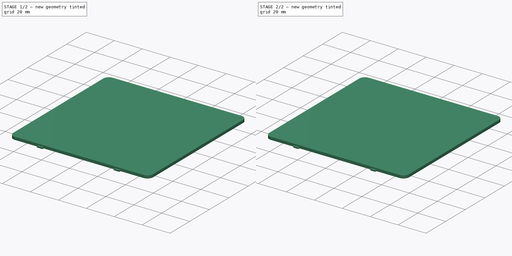
[diagram: build sequence overview — one tinted view per stage of 2, left to right]
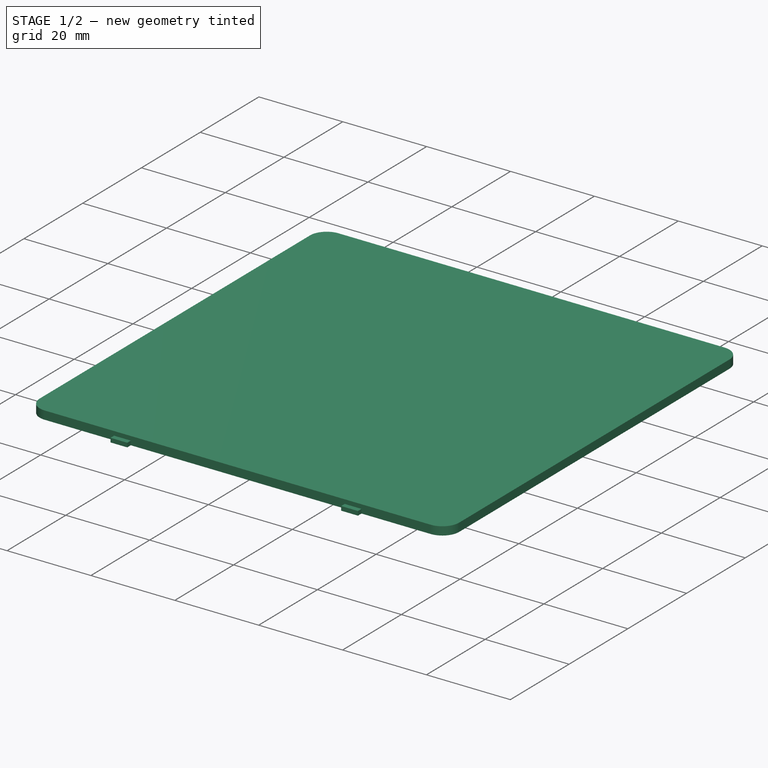
[diagram: stage 1 of 2 — iso view after this stage's code; geometry added in this stage tinted green]
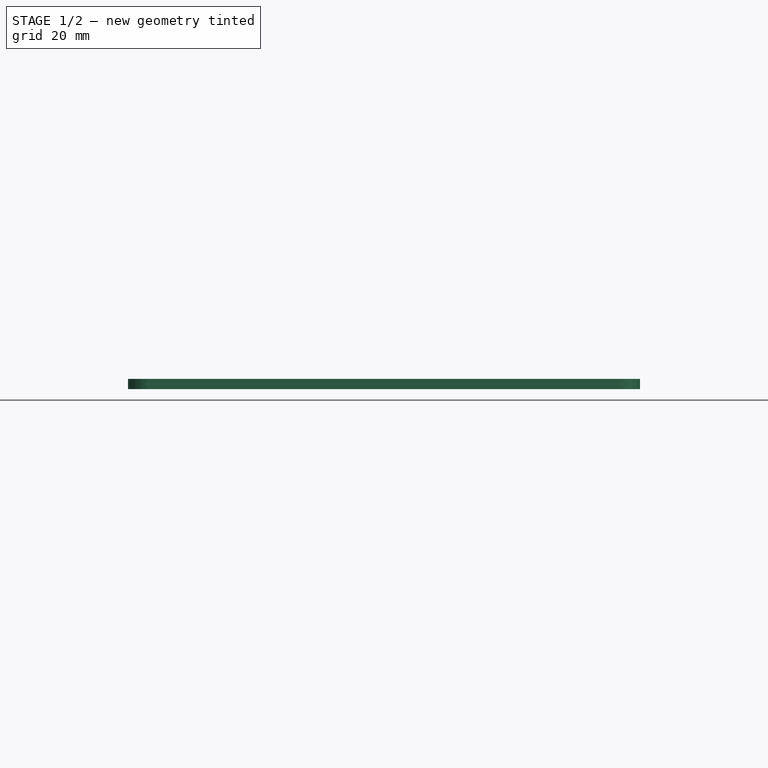
[diagram: stage 1 of 2 — front view after this stage's code; geometry added in this stage tinted green]
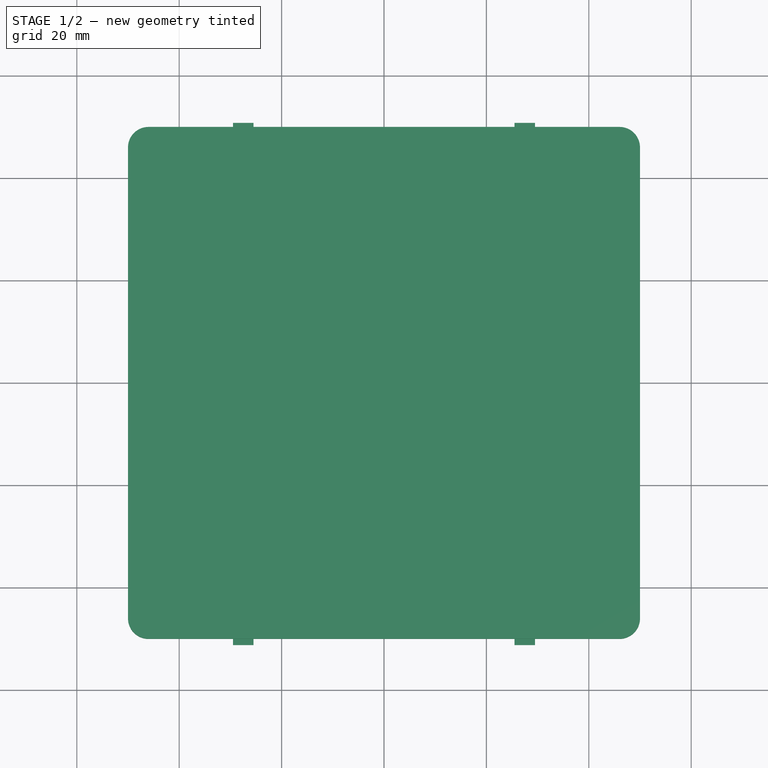
[diagram: stage 1 of 2 — top view after this stage's code; geometry added in this stage tinted green]
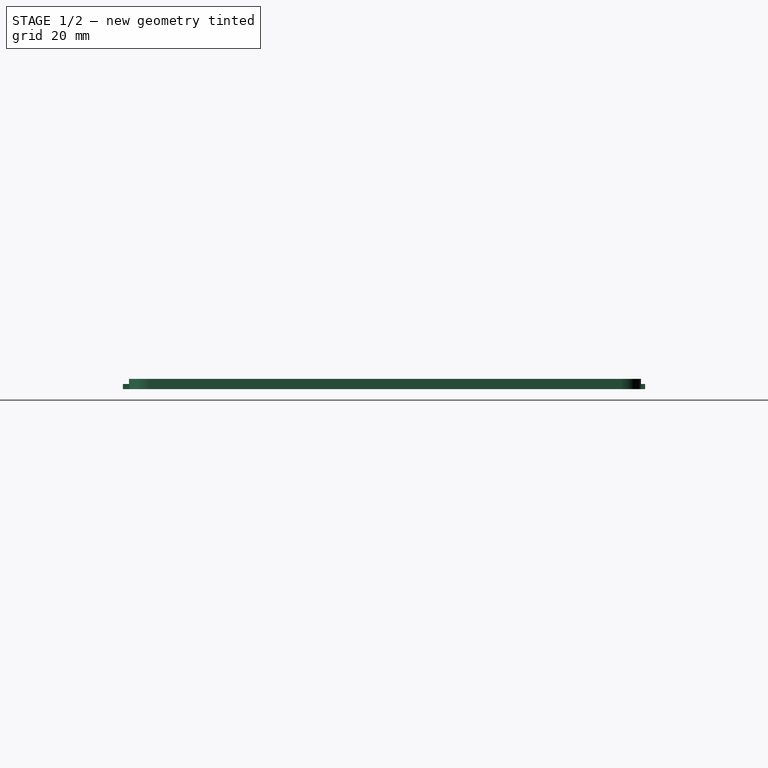
[diagram: stage 1 of 2 — right view after this stage's code; geometry added in this stage tinted green]
FCSTD DOCUMENT  (FreeCAD 0.20R29603 (Git))
Label: BackPocketCover
License: All rights reserved
LicenseURL: http://en.wikipedia.org/wiki/All_rights_reserved
objects: Sketcher::SketchObject×2, PartDesign::Pad×2, PartDesign::Chamfer×1, PartDesign::Body×1
note: 9 computed .brp shape members not serialized (recipe doc carries the construction recipe); baked Part::Feature solids carry a one-line shape summary decoded from their .brp

FEATURE [Sketcher::SketchObject] Sketch
  FullyConstrained = true
  MapMode = 5
  Support = -> [XY_Plane]
  sketch-geometry (24):
    g0: LineSegment StartX=-46 StartY=50 StartZ=0 EndX=-29.5 EndY=50 EndZ=0
    g1: LineSegment StartX=50 StartY=46 StartZ=0 EndX=50 EndY=-46 EndZ=0
    g2: LineSegment StartX=46 StartY=-50 StartZ=0 EndX=29.5 EndY=-50 EndZ=0
    g3: LineSegment StartX=-50 StartY=-46 StartZ=0 EndX=-50 EndY=46 EndZ=0
    g4: LineSegment StartX=29.5 StartY=50 StartZ=0 EndX=29.5 EndY=50.8 EndZ=0
    g5: LineSegment StartX=29.5 StartY=50.8 StartZ=0 EndX=25.5 EndY=50.8 EndZ=0
    g6: LineSegment StartX=25.5 StartY=50.8 StartZ=0 EndX=25.5 EndY=50 EndZ=0
    g7: LineSegment StartX=-25.5 StartY=50 StartZ=0 EndX=-25.5 EndY=50.8 EndZ=0
    g8: LineSegment StartX=-25.5 StartY=50.8 StartZ=0 EndX=-29.5 EndY=50.8 EndZ=0
    g9: LineSegment StartX=-29.5 StartY=50.8 StartZ=0 EndX=-29.5 EndY=50 EndZ=0
    g10: LineSegment StartX=29.5 StartY=-50 StartZ=0 EndX=29.5 EndY=-51.2 EndZ=0
    g11: LineSegment StartX=29.5 StartY=-51.2 StartZ=0 EndX=25.5 EndY=-51.2 EndZ=0
    g12: LineSegment StartX=25.5 StartY=-51.2 StartZ=0 EndX=25.5 EndY=-50 EndZ=0
    g13: LineSegment StartX=-25.5 StartY=-50 StartZ=0 EndX=-25.5 EndY=-51.2 EndZ=0
    g14: LineSegment StartX=-25.5 StartY=-51.2 StartZ=0 EndX=-29.5 EndY=-51.2 EndZ=0
    g15: LineSegment StartX=-29.5 StartY=-51.2 StartZ=0 EndX=-29.5 EndY=-50 EndZ=0
    g16: LineSegment StartX=29.5 StartY=50 StartZ=0 EndX=46 EndY=50 EndZ=0
    g17: LineSegment StartX=-25.5 StartY=50 StartZ=0 EndX=25.5 EndY=50 EndZ=0
    g18: LineSegment StartX=25.5 StartY=-50 StartZ=0 EndX=-25.5 EndY=-50 EndZ=0
    g19: LineSegment StartX=-29.5 StartY=-50 StartZ=0 EndX=-46 EndY=-50 EndZ=0
    g20: ArcOfCircle CenterX=-46 CenterY=-46 CenterZ=0 NormalX=0 NormalY=0 NormalZ=1 AngleXU=0 Radius=4 StartAngle=3.14159 EndAngle=4.71239
    g21: ArcOfCircle CenterX=-46 CenterY=46 CenterZ=0 NormalX=0 NormalY=0 NormalZ=1 AngleXU=0 Radius=4 StartAngle=1.5708 EndAngle=3.14159
    g22: ArcOfCircle CenterX=46 CenterY=46 CenterZ=0 NormalX=0 NormalY=0 NormalZ=1 AngleXU=0 Radius=4 StartAngle=0 EndAngle=1.5708
    g23: ArcOfCircle CenterX=46 CenterY=-46 CenterZ=0 NormalX=0 NormalY=0 NormalZ=1 AngleXU=0 Radius=4 StartAngle=4.71239 EndAngle=6.28319
  constraints (66):
    c: Horizontal(g2)
    c: Vertical(g1)
    c: Coincident(g4,g5)
    c: Coincident(g5,g6)
    c: Horizontal(g5)
    c: Vertical(g4)
    c: Vertical(g6)
    c: Coincident(g7,g8)
    c: Coincident(g8,g9)
    c: Horizontal(g8)
    c: Vertical(g7)
    c: Vertical(g9)
    c: Coincident(g10,g11)
    c: Coincident(g11,g12)
    c: Horizontal(g11)
    c: Vertical(g10)
    c: Vertical(g12)
    c: Coincident(g13,g14)
    c: Coincident(g14,g15)
    c: Horizontal(g14)
    c: Vertical(g13)
    c: Vertical(g15)
    c: DistanceY(g6,g5) = 0.8
    c: DistanceX(g5,g4) = 4
    c: DistanceX(g8,g7) = 4
    c: DistanceY(g9,g8) = 0.8
    c: Symmetric(g7,g6,g-2)
    c: DistanceX(g7,g6) = 51
    c: DistanceX(g11,g10) = 4
    c: DistanceX(g14,g13) = 4
    c: DistanceY(g11,g12) = 1.2
    c: DistanceY(g14,g15) = 1.2
    c: Symmetric(g13,g12,g-2)
    c: DistanceX(g13,g12) = 51
    c: Horizontal(g16)
    c: Horizontal(g0)
    c: Coincident(g7,g17)
    c: Coincident(g17,g6)
    c: Coincident(g0,g9)
    c: Coincident(g16,g4)
    c: PointOnObject(g18,g13)
    c: PointOnObject(g19,g15)
    c: Equal(g15,g13)
    c: Equal(g10,g12)
    c: Horizontal(g19,g18)
    c: Horizontal(g19)
    c: Horizontal(g18)
    c: Coincident(g10,g2)
    c: Coincident(g18,g12)
    c: Tangent(g3,g20) = 1.5708
    c: Tangent(g19,g20) = 1.5708
    c: Diameter(g20) = 8
    c: Tangent(g0,g21) = 1.5708
    c: Tangent(g3,g21) = 1.5708
    c: Tangent(g16,g22) = 1.5708
    c: Tangent(g1,g22) = 1.5708
    c: Tangent(g1,g23) = 1.5708
    c: Tangent(g2,g23) = 1.5708
    c: Equal(g20,g23)
    c: Equal(g23,g22)
    c: Equal(g22,g21)
    c: DistanceY(g19,g0) = 100
    c: Symmetric(g3,g3,g-1)
    c: DistanceX(g3,g1) = 100
    c: Symmetric(g3,g1,g-2)
    c: Horizontal(g0,g7)
FEATURE [PartDesign::Pad] Pad
  Direction = (0,0,1)
  Length = 1
  Length2 = 10
  Profile = -> Sketch
  ReferenceAxis = -> Sketch [N_Axis]
  Type = 0
FEATURE [Sketcher::SketchObject] Sketch001
  FullyConstrained = true
  MapMode = 5
  Placement = pos=(0,0,1) rot=(0,0,1;0rad)
  Support = -> [Pad]
  sketch-geometry (8):
    g0: LineSegment StartX=-46 StartY=50 StartZ=0 EndX=46 EndY=50 EndZ=0
    g1: LineSegment StartX=50 StartY=46 StartZ=0 EndX=50 EndY=-46 EndZ=0
    g2: LineSegment StartX=46 StartY=-50 StartZ=0 EndX=-46 EndY=-50 EndZ=0
    g3: LineSegment StartX=-50 StartY=-46 StartZ=0 EndX=-50 EndY=46 EndZ=0
    g4: ArcOfCircle CenterX=-46 CenterY=46 CenterZ=0 NormalX=0 NormalY=0 NormalZ=1 AngleXU=0 Radius=4 StartAngle=1.5708 EndAngle=3.14159
    g5: ArcOfCircle CenterX=46 CenterY=46 CenterZ=0 NormalX=0 NormalY=0 NormalZ=1 AngleXU=0 Radius=4 StartAngle=6e-16 EndAngle=1.5708
    g6: ArcOfCircle CenterX=46 CenterY=-46 CenterZ=0 NormalX=0 NormalY=0 NormalZ=1 AngleXU=0 Radius=4 StartAngle=4.71239 EndAngle=6.28319
    g7: ArcOfCircle CenterX=-46 CenterY=-46 CenterZ=0 NormalX=0 NormalY=0 NormalZ=1 AngleXU=0 Radius=4 StartAngle=3.14159 EndAngle=4.71239
  constraints (18):
    c: Horizontal(g2)
    c: Vertical(g1)
    c: Tangent(g3,g4) = 1.5708
    c: Tangent(g0,g4) = 1.5708
    c: Tangent(g0,g5) = 1.5708
    c: Tangent(g1,g5) = 1.5708
    c: Tangent(g1,g6) = 1.5708
    c: Tangent(g2,g6) = 1.5708
    c: Tangent(g2,g7) = 1.5708
    c: Tangent(g3,g7) = 1.5708
    c: Equal(g4,g5)
    c: Equal(g5,g6)
    c: Equal(g6,g7)
    c: Diameter(g4) = 8
    c: Symmetric(g3,g3,g-1)
    c: Symmetric(g0,g0,g-2)
    c: DistanceY(g2,g0) = 100
    c: DistanceX(g3,g1) = 100
FEATURE [PartDesign::Pad] Pad001
  BaseFeature = -> Pad
  Direction = (0,0,1)
  Length = 1
  Length2 = 10
  Profile = -> Sketch001
  ReferenceAxis = -> Sketch001 [N_Axis]
  Type = 0
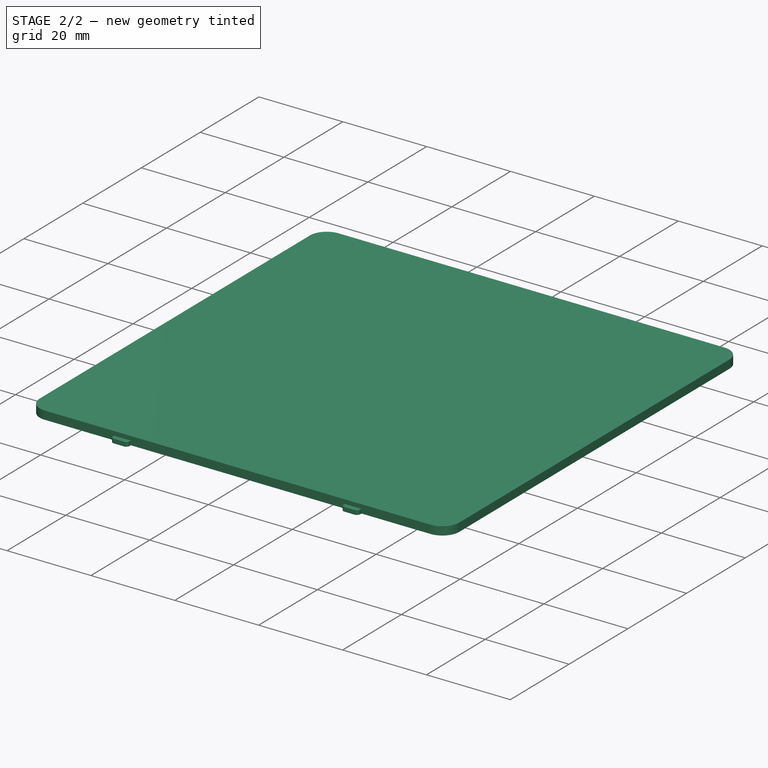
[diagram: stage 2 of 2 — iso view after this stage's code; geometry added in this stage tinted green]
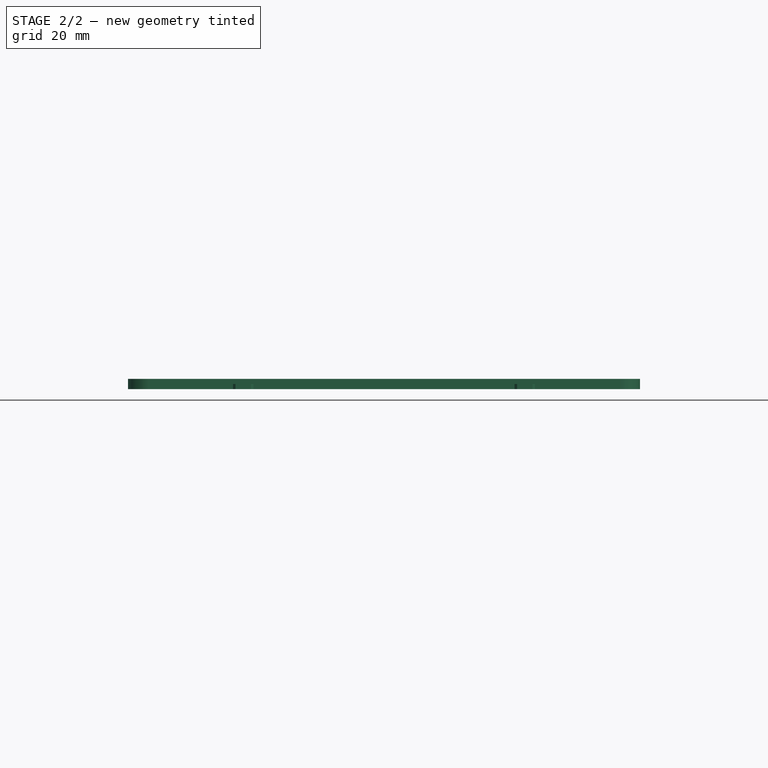
[diagram: stage 2 of 2 — front view after this stage's code; geometry added in this stage tinted green]
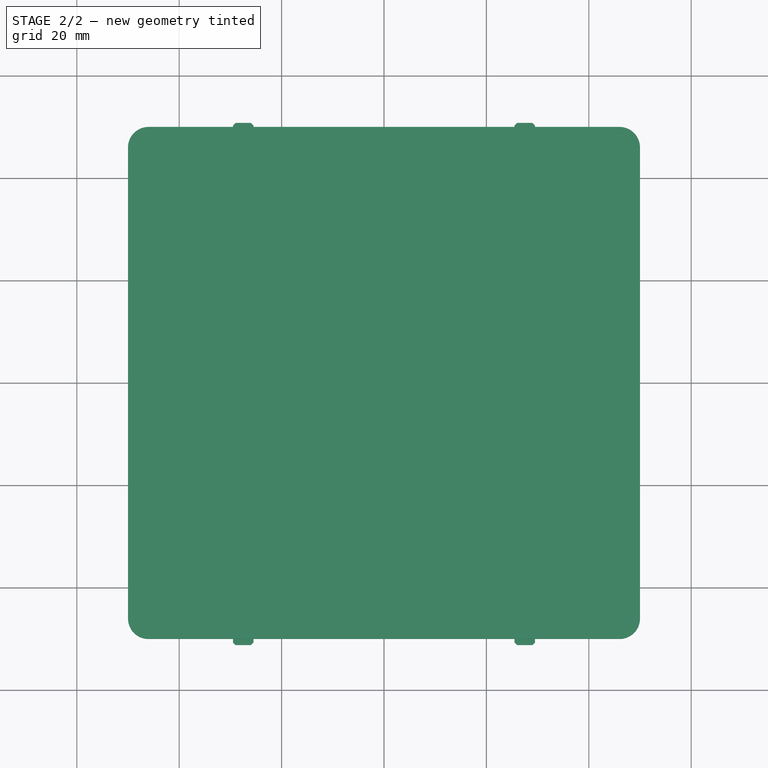
[diagram: stage 2 of 2 — top view after this stage's code; geometry added in this stage tinted green]
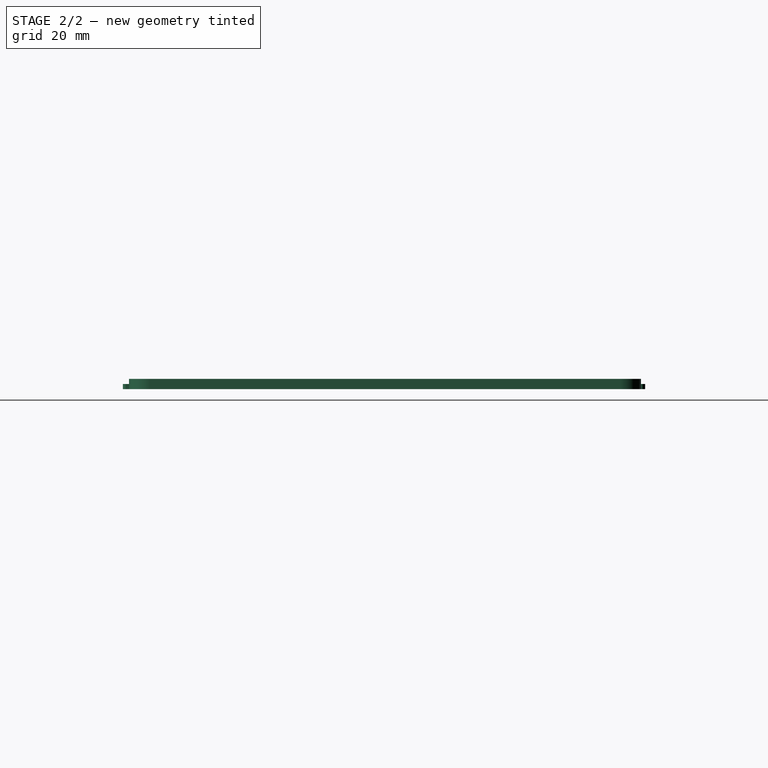
[diagram: stage 2 of 2 — right view after this stage's code; geometry added in this stage tinted green]
FEATURE [PartDesign::Chamfer] Chamfer
  Angle = 45
  Base = -> Pad001 [Edge73,Edge71,Edge65,Edge63,Edge8,Edge43,Edge48,Edge50]
  BaseFeature = -> Pad001
  ChamferType = 0
  FlipDirection = false
  Size = 0.5
  Size2 = 1
  SupportTransform = false
  UseAllEdges = false
FEATURE [PartDesign::Body] Body
  Group = -> [Sketch,Pad,Sketch001,Pad001,Chamfer]
  Origin = -> Origin
  Tip = -> Chamfer
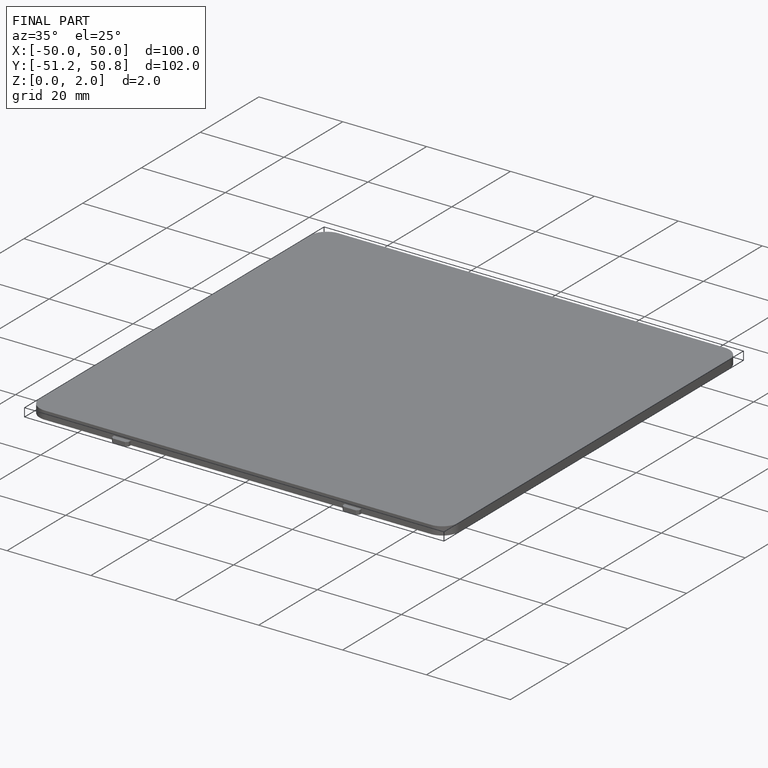
[diagram: finished part — iso view with bounding-box wireframe]
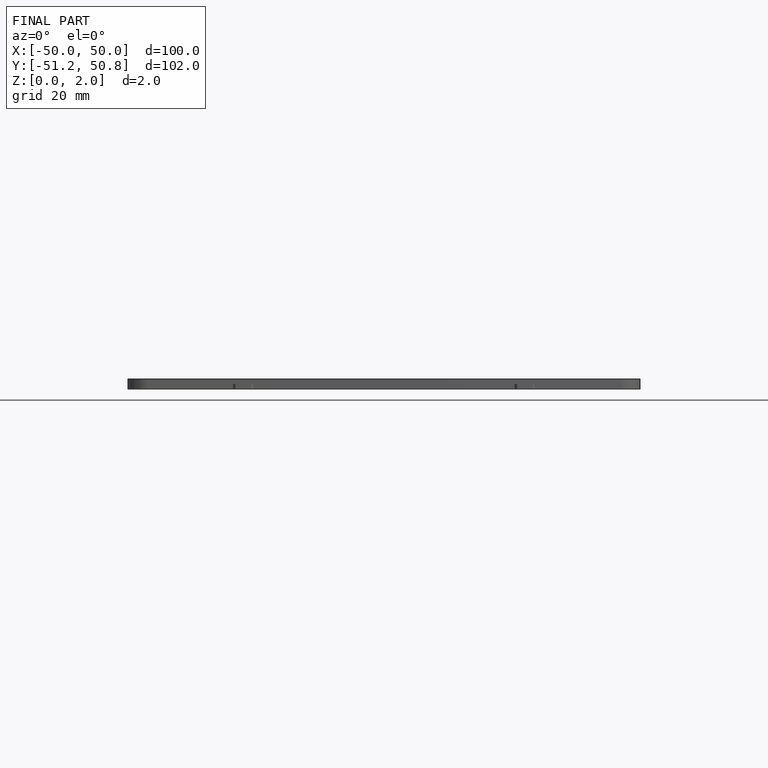
[diagram: finished part — front view with bounding-box wireframe]
